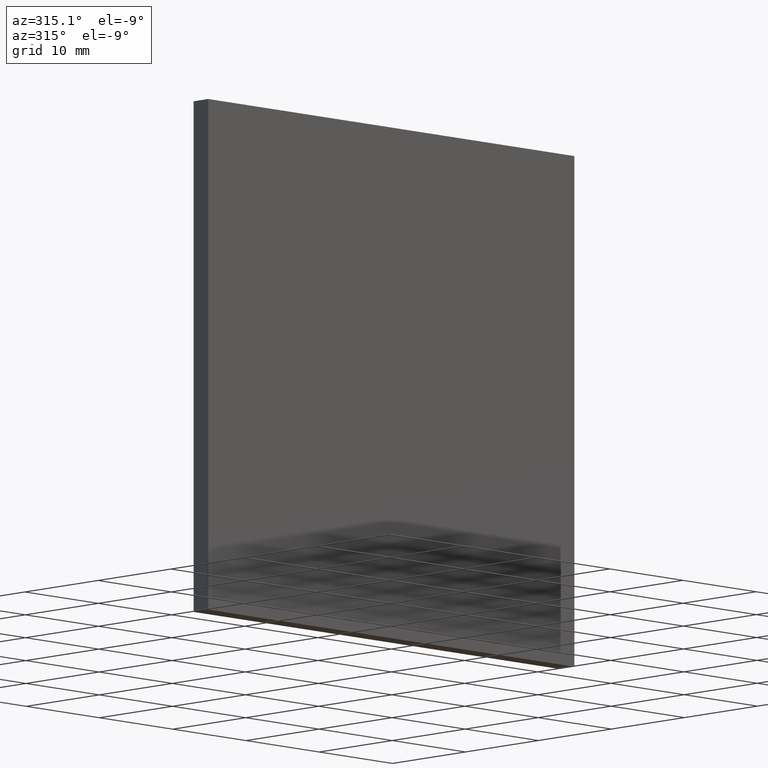
[diagram: clean part render]
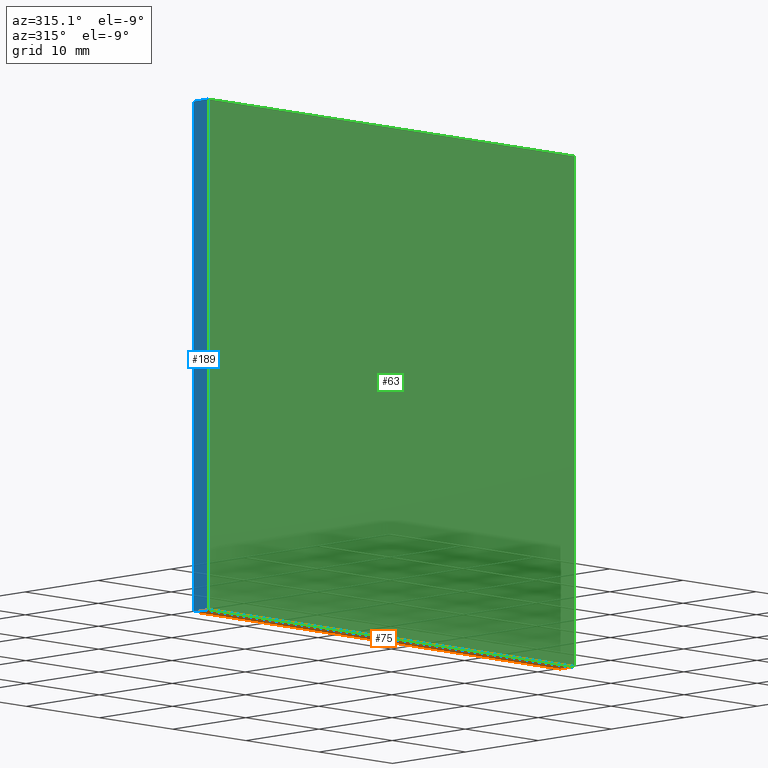
[diagram: same view with three faces highlighted in distinct colors, each labeled with its STEP entity id]
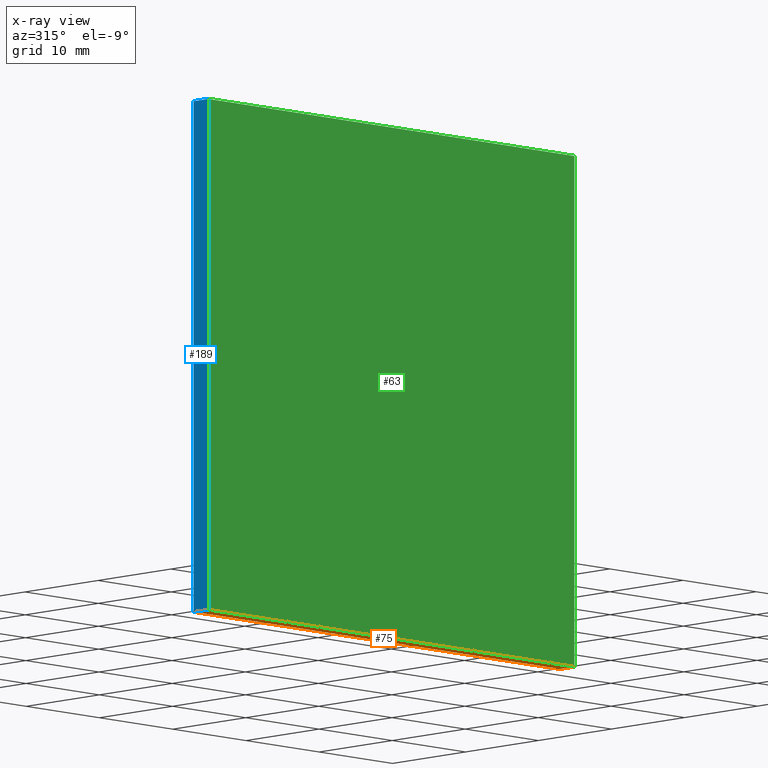
[diagram: x-ray of the same camera — body ghosted, the three highlighted faces saturated]
A machine part, auxiliary view with three faces highlighted in distinct colors.
The next image is the same camera in x-ray (body ghosted, the three faces saturated) — at least one of them is partly hidden behind the body in this view.
Their STEP definitions:

[orange] entity #75 — the highlighted planar face has unit normal (0, 0, 1).
#2 = VERTEX_POINT ( 'NONE', #77 ) ;
#11 = ORIENTED_EDGE ( 'NONE', *, *, #101, .F. ) ;
#14 = VECTOR ( 'NONE', #154, 1000.000000000000000 ) ;
#22 = VECTOR ( 'NONE', #139, 1000.000000000000000 ) ;
#24 = LINE ( 'NONE', #80, #204 ) ;
#54 = CARTESIAN_POINT ( 'NONE',  ( 24.99999999999999600, 2.000000000000000000, -25.00000000000000000 ) ) ;
#56 = EDGE_LOOP ( 'NONE', ( #220, #113, #11, #181 ) ) ;
#74 = CARTESIAN_POINT ( 'NONE',  ( -25.00000000000000400, 2.000000000000000000, -25.00000000000000000 ) ) ;
#75 = ADVANCED_FACE ( 'NONE', ( #90 ), #193, .F. ) ;
#77 = CARTESIAN_POINT ( 'NONE',  ( 24.99999999999999600, 0.0000000000000000000, -25.00000000000000000 ) ) ;
#80 = CARTESIAN_POINT ( 'NONE',  ( -25.00000000000000400, 0.0000000000000000000, -25.00000000000000000 ) ) ;
#87 = CARTESIAN_POINT ( 'NONE',  ( -25.00000000000000400, 0.0000000000000000000, -25.00000000000000000 ) ) ;
#89 = DIRECTION ( 'NONE',  ( -0.0000000000000000000, -1.000000000000000000, -0.0000000000000000000 ) ) ;
#90 = FACE_OUTER_BOUND ( 'NONE', #56, .T. ) ;
#101 = EDGE_CURVE ( 'NONE', #229, #126, #198, .T. ) ;
#104 = CARTESIAN_POINT ( 'NONE',  ( 24.99999999999999600, 2.000000000000000000, -25.00000000000000000 ) ) ;
#113 = ORIENTED_EDGE ( 'NONE', *, *, #118, .F. ) ;
#116 = LINE ( 'NONE', #217, #14 ) ;
#118 = EDGE_CURVE ( 'NONE', #126, #174, #116, .T. ) ;
#126 = VERTEX_POINT ( 'NONE', #74 ) ;
#134 = AXIS2_PLACEMENT_3D ( 'NONE', #216, #168, #148 ) ;
#136 = EDGE_CURVE ( 'NONE', #2, #174, #24, .T. ) ;
#139 = DIRECTION ( 'NONE',  ( -1.000000000000000000, -0.0000000000000000000, -0.0000000000000000000 ) ) ;
#142 = LINE ( 'NONE', #104, #197 ) ;
#148 = DIRECTION ( 'NONE',  ( 1.000000000000000000, 0.0000000000000000000, -0.0000000000000000000 ) ) ;
#154 = DIRECTION ( 'NONE',  ( -0.0000000000000000000, -1.000000000000000000, -0.0000000000000000000 ) ) ;
#155 = EDGE_CURVE ( 'NONE', #229, #2, #142, .T. ) ;
#168 = DIRECTION ( 'NONE',  ( 0.0000000000000000000, 0.0000000000000000000, 1.000000000000000000 ) ) ;
#174 = VERTEX_POINT ( 'NONE', #87 ) ;
#181 = ORIENTED_EDGE ( 'NONE', *, *, #155, .T. ) ;
#193 = PLANE ( 'NONE',  #134 ) ;
#197 = VECTOR ( 'NONE', #89, 1000.000000000000000 ) ;
#198 = LINE ( 'NONE', #210, #22 ) ;
#200 = DIRECTION ( 'NONE',  ( -1.000000000000000000, -0.0000000000000000000, -0.0000000000000000000 ) ) ;
#204 = VECTOR ( 'NONE', #200, 1000.000000000000000 ) ;
#210 = CARTESIAN_POINT ( 'NONE',  ( -25.00000000000000400, 2.000000000000000000, -25.00000000000000000 ) ) ;
#216 = CARTESIAN_POINT ( 'NONE',  ( -25.00000000000000400, 2.000000000000000000, -25.00000000000000000 ) ) ;
#217 = CARTESIAN_POINT ( 'NONE',  ( -25.00000000000000400, 2.000000000000000000, -25.00000000000000000 ) ) ;
#220 = ORIENTED_EDGE ( 'NONE', *, *, #136, .T. ) ;
#229 = VERTEX_POINT ( 'NONE', #54 ) ;

[blue] entity #189 — the highlighted planar face has unit normal (1, 0, -0).
#3 = LINE ( 'NONE', #12, #94 ) ;
#12 = CARTESIAN_POINT ( 'NONE',  ( -25.00000000000000400, 0.0000000000000000000, -25.00000000000000000 ) ) ;
#14 = VECTOR ( 'NONE', #154, 1000.000000000000000 ) ;
#17 = DIRECTION ( 'NONE',  ( -0.0000000000000000000, -1.000000000000000000, -0.0000000000000000000 ) ) ;
#27 = ORIENTED_EDGE ( 'NONE', *, *, #163, .F. ) ;
#30 = DIRECTION ( 'NONE',  ( 1.387778780781445700E-016, 0.0000000000000000000, 1.000000000000000000 ) ) ;
#44 = EDGE_CURVE ( 'NONE', #126, #166, #50, .T. ) ;
#48 = DIRECTION ( 'NONE',  ( 1.387778780781445700E-016, 0.0000000000000000000, 1.000000000000000000 ) ) ;
#50 = LINE ( 'NONE', #176, #58 ) ;
#58 = VECTOR ( 'NONE', #48, 1000.000000000000000 ) ;
#64 = VERTEX_POINT ( 'NONE', #145 ) ;
#71 = DIRECTION ( 'NONE',  ( -1.387778780781445700E-016, 0.0000000000000000000, -1.000000000000000000 ) ) ;
#74 = CARTESIAN_POINT ( 'NONE',  ( -25.00000000000000400, 2.000000000000000000, -25.00000000000000000 ) ) ;
#85 = CARTESIAN_POINT ( 'NONE',  ( -24.99999999999999600, 2.000000000000000000, 25.00000000000000000 ) ) ;
#87 = CARTESIAN_POINT ( 'NONE',  ( -25.00000000000000400, 0.0000000000000000000, -25.00000000000000000 ) ) ;
#94 = VECTOR ( 'NONE', #30, 1000.000000000000000 ) ;
#96 = DIRECTION ( 'NONE',  ( 1.000000000000000000, 0.0000000000000000000, -1.387778780781445700E-016 ) ) ;
#100 = FACE_OUTER_BOUND ( 'NONE', #160, .T. ) ;
#102 = EDGE_CURVE ( 'NONE', #174, #64, #3, .T. ) ;
#109 = VECTOR ( 'NONE', #17, 1000.000000000000000 ) ;
#112 = PLANE ( 'NONE',  #184 ) ;
#116 = LINE ( 'NONE', #217, #14 ) ;
#118 = EDGE_CURVE ( 'NONE', #126, #174, #116, .T. ) ;
#126 = VERTEX_POINT ( 'NONE', #74 ) ;
#130 = ORIENTED_EDGE ( 'NONE', *, *, #102, .T. ) ;
#145 = CARTESIAN_POINT ( 'NONE',  ( -24.99999999999999600, 0.0000000000000000000, 25.00000000000000000 ) ) ;
#154 = DIRECTION ( 'NONE',  ( -0.0000000000000000000, -1.000000000000000000, -0.0000000000000000000 ) ) ;
#160 = EDGE_LOOP ( 'NONE', ( #130, #27, #224, #227 ) ) ;
#163 = EDGE_CURVE ( 'NONE', #166, #64, #196, .T. ) ;
#166 = VERTEX_POINT ( 'NONE', #85 ) ;
#174 = VERTEX_POINT ( 'NONE', #87 ) ;
#176 = CARTESIAN_POINT ( 'NONE',  ( -25.00000000000000400, 2.000000000000000000, -25.00000000000000000 ) ) ;
#178 = CARTESIAN_POINT ( 'NONE',  ( -25.00000000000000400, 2.000000000000000000, -25.00000000000000000 ) ) ;
#184 = AXIS2_PLACEMENT_3D ( 'NONE', #178, #96, #71 ) ;
#189 = ADVANCED_FACE ( 'NONE', ( #100 ), #112, .F. ) ;
#196 = LINE ( 'NONE', #199, #109 ) ;
#199 = CARTESIAN_POINT ( 'NONE',  ( -24.99999999999999600, 2.000000000000000000, 25.00000000000000000 ) ) ;
#217 = CARTESIAN_POINT ( 'NONE',  ( -25.00000000000000400, 2.000000000000000000, -25.00000000000000000 ) ) ;
#224 = ORIENTED_EDGE ( 'NONE', *, *, #44, .F. ) ;
#227 = ORIENTED_EDGE ( 'NONE', *, *, #118, .T. ) ;

[green] entity #63 — the highlighted planar face has unit normal (0, 1, 0).
#1 = FACE_OUTER_BOUND ( 'NONE', #82, .T. ) ;
#2 = VERTEX_POINT ( 'NONE', #77 ) ;
#3 = LINE ( 'NONE', #12, #94 ) ;
#4 = ORIENTED_EDGE ( 'NONE', *, *, #102, .F. ) ;
#12 = CARTESIAN_POINT ( 'NONE',  ( -25.00000000000000400, 0.0000000000000000000, -25.00000000000000000 ) ) ;
#13 = DIRECTION ( 'NONE',  ( 0.0000000000000000000, 1.000000000000000000, 0.0000000000000000000 ) ) ;
#16 = CARTESIAN_POINT ( 'NONE',  ( 24.99999999999999600, 0.0000000000000000000, -25.00000000000000000 ) ) ;
#23 = AXIS2_PLACEMENT_3D ( 'NONE', #68, #13, #211 ) ;
#24 = LINE ( 'NONE', #80, #204 ) ;
#30 = DIRECTION ( 'NONE',  ( 1.387778780781445700E-016, 0.0000000000000000000, 1.000000000000000000 ) ) ;
#32 = EDGE_CURVE ( 'NONE', #64, #92, #72, .T. ) ;
#40 = VECTOR ( 'NONE', #53, 1000.000000000000000 ) ;
#53 = DIRECTION ( 'NONE',  ( 1.000000000000000000, 0.0000000000000000000, 0.0000000000000000000 ) ) ;
#61 = VECTOR ( 'NONE', #69, 1000.000000000000000 ) ;
#63 = ADVANCED_FACE ( 'NONE', ( #1 ), #88, .F. ) ;
#64 = VERTEX_POINT ( 'NONE', #145 ) ;
#66 = CARTESIAN_POINT ( 'NONE',  ( -24.99999999999999600, 0.0000000000000000000, 25.00000000000000000 ) ) ;
#68 = CARTESIAN_POINT ( 'NONE',  ( 0.0000000000000000000, 0.0000000000000000000, 0.0000000000000000000 ) ) ;
#69 = DIRECTION ( 'NONE',  ( -1.387778780781445700E-016, -0.0000000000000000000, -1.000000000000000000 ) ) ;
#70 = ORIENTED_EDGE ( 'NONE', *, *, #32, .F. ) ;
#72 = LINE ( 'NONE', #66, #40 ) ;
#77 = CARTESIAN_POINT ( 'NONE',  ( 24.99999999999999600, 0.0000000000000000000, -25.00000000000000000 ) ) ;
#80 = CARTESIAN_POINT ( 'NONE',  ( -25.00000000000000400, 0.0000000000000000000, -25.00000000000000000 ) ) ;
#82 = EDGE_LOOP ( 'NONE', ( #192, #70, #4, #206 ) ) ;
#87 = CARTESIAN_POINT ( 'NONE',  ( -25.00000000000000400, 0.0000000000000000000, -25.00000000000000000 ) ) ;
#88 = PLANE ( 'NONE',  #23 ) ;
#92 = VERTEX_POINT ( 'NONE', #93 ) ;
#93 = CARTESIAN_POINT ( 'NONE',  ( 25.00000000000000400, 0.0000000000000000000, 25.00000000000000000 ) ) ;
#94 = VECTOR ( 'NONE', #30, 1000.000000000000000 ) ;
#102 = EDGE_CURVE ( 'NONE', #174, #64, #3, .T. ) ;
#125 = EDGE_CURVE ( 'NONE', #92, #2, #159, .T. ) ;
#136 = EDGE_CURVE ( 'NONE', #2, #174, #24, .T. ) ;
#145 = CARTESIAN_POINT ( 'NONE',  ( -24.99999999999999600, 0.0000000000000000000, 25.00000000000000000 ) ) ;
#159 = LINE ( 'NONE', #16, #61 ) ;
#174 = VERTEX_POINT ( 'NONE', #87 ) ;
#192 = ORIENTED_EDGE ( 'NONE', *, *, #125, .F. ) ;
#200 = DIRECTION ( 'NONE',  ( -1.000000000000000000, -0.0000000000000000000, -0.0000000000000000000 ) ) ;
#204 = VECTOR ( 'NONE', #200, 1000.000000000000000 ) ;
#206 = ORIENTED_EDGE ( 'NONE', *, *, #136, .F. ) ;
#211 = DIRECTION ( 'NONE',  ( 0.0000000000000000000, -0.0000000000000000000, 1.000000000000000000 ) ) ;